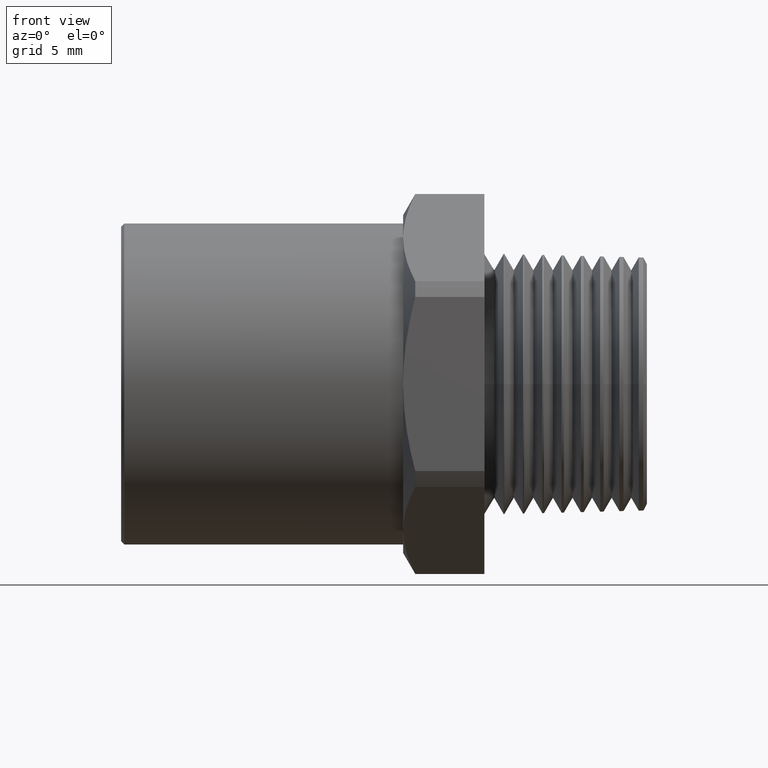
[diagram: clean part render]
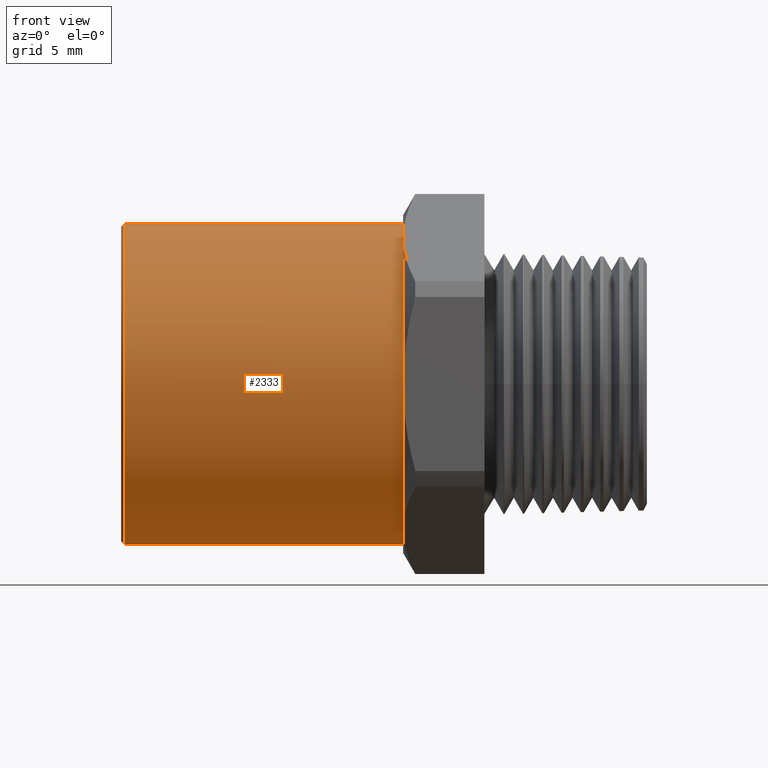
[diagram: same view with one face highlighted and labeled with its STEP entity id]
A machine part, front view. The second image highlights one B-rep face of the part: STEP entity #2333.
In plain terms, the highlighted cylindrical surface (partial cylindrical patch) has radius 12.7889 mm, axis along (-1, 0, 0).
Its self-contained STEP definition (entity closure, byte-faithful):
#60 = VERTEX_POINT ( 'NONE', #559 ) ;
#78 = VERTEX_POINT ( 'NONE', #532 ) ;
#377 = EDGE_CURVE ( 'NONE', #2174, #2177, #1125, .T. ) ;
#532 = CARTESIAN_POINT ( 'NONE',  ( -1.639999999999999200, 6.166096633706921500E-017, -0.5034999999999999500 ) ) ;
#559 = CARTESIAN_POINT ( 'NONE',  ( -1.639999999999999200, 0.0000000000000000000, 0.5034999999999999500 ) ) ;
#1122 = DIRECTION ( 'NONE',  ( 0.0000000000000000000, 0.0000000000000000000, 1.000000000000000000 ) ) ;
#1123 = DIRECTION ( 'NONE',  ( -1.000000000000000000, 0.0000000000000000000, 0.0000000000000000000 ) ) ;
#1124 = AXIS2_PLACEMENT_3D ( 'NONE', #1130, #1123, #1122 ) ;
#1125 = CIRCLE ( 'NONE', #1124, 0.5034999999999999500 ) ;
#1130 = CARTESIAN_POINT ( 'NONE',  ( -0.7649999999999999000, 0.0000000000000000000, 0.0000000000000000000 ) ) ;
#1211 = DIRECTION ( 'NONE',  ( -1.000000000000000000, 0.0000000000000000000, 0.0000000000000000000 ) ) ;
#1212 = VECTOR ( 'NONE', #1211, 39.37007874015748100 ) ;
#1213 = CARTESIAN_POINT ( 'NONE',  ( -0.5911096051061856000, 6.166096633706921500E-017, -0.5034999999999999500 ) ) ;
#1214 = LINE ( 'NONE', #1213, #1212 ) ;
#1251 = CARTESIAN_POINT ( 'NONE',  ( -0.7649999999999999000, 0.0000000000000000000, 0.5034999999999999500 ) ) ;
#1253 = CARTESIAN_POINT ( 'NONE',  ( -0.7649999999999999000, 6.166096633706923900E-017, -0.5035000000000000600 ) ) ;
#1259 = DIRECTION ( 'NONE',  ( -1.000000000000000000, 0.0000000000000000000, 0.0000000000000000000 ) ) ;
#1260 = VECTOR ( 'NONE', #1259, 39.37007874015748100 ) ;
#1261 = CARTESIAN_POINT ( 'NONE',  ( -0.5911096051061856000, 0.0000000000000000000, 0.5034999999999999500 ) ) ;
#1262 = LINE ( 'NONE', #1261, #1260 ) ;
#1591 = DIRECTION ( 'NONE',  ( 0.0000000000000000000, 0.0000000000000000000, -1.000000000000000000 ) ) ;
#1592 = DIRECTION ( 'NONE',  ( 1.000000000000000000, 0.0000000000000000000, 0.0000000000000000000 ) ) ;
#1593 = AXIS2_PLACEMENT_3D ( 'NONE', #1599, #1592, #1591 ) ;
#1594 = CIRCLE ( 'NONE', #1593, 0.5034999999999999500 ) ;
#1595 = DIRECTION ( 'NONE',  ( 0.0000000000000000000, 0.0000000000000000000, 1.000000000000000000 ) ) ;
#1596 = DIRECTION ( 'NONE',  ( -1.000000000000000000, 0.0000000000000000000, 0.0000000000000000000 ) ) ;
#1597 = CARTESIAN_POINT ( 'NONE',  ( -0.5911096051061856000, 0.0000000000000000000, 0.0000000000000000000 ) ) ;
#1598 = AXIS2_PLACEMENT_3D ( 'NONE', #1597, #1596, #1595 ) ;
#1599 = CARTESIAN_POINT ( 'NONE',  ( -1.639999999999999200, 0.0000000000000000000, 0.0000000000000000000 ) ) ;
#1600 = CYLINDRICAL_SURFACE ( 'NONE', #1598, 0.5034999999999999500 ) ;
#1601 = FACE_OUTER_BOUND ( 'NONE', #2335, .T. ) ;
#2164 = EDGE_CURVE ( 'NONE', #2174, #78, #1214, .T. ) ;
#2171 = EDGE_CURVE ( 'NONE', #2177, #60, #1262, .T. ) ;
#2174 = VERTEX_POINT ( 'NONE', #1253 ) ;
#2177 = VERTEX_POINT ( 'NONE', #1251 ) ;
#2331 = ORIENTED_EDGE ( 'NONE', *, *, #377, .T. ) ;
#2333 = ADVANCED_FACE ( 'NONE', ( #1601 ), #1600, .T. ) ;
#2334 = ORIENTED_EDGE ( 'NONE', *, *, #2164, .F. ) ;
#2335 = EDGE_LOOP ( 'NONE', ( #2334, #2331, #2341, #2340 ) ) ;
#2336 = EDGE_CURVE ( 'NONE', #60, #78, #1594, .T. ) ;
#2340 = ORIENTED_EDGE ( 'NONE', *, *, #2336, .T. ) ;
#2341 = ORIENTED_EDGE ( 'NONE', *, *, #2171, .T. ) ;